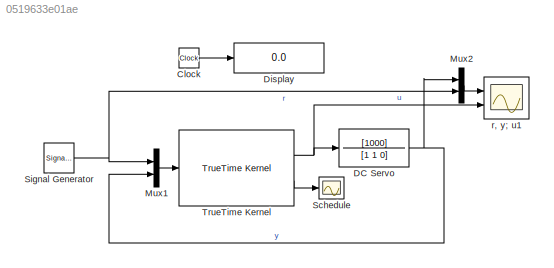
MODEL slx_0519633e01ae
KIND model
CONFIG InitFcn = clear functions
BLOCK [Clock] Clock
BLOCK [TransferFcn] DC Servo
  Denominator = [1 1 0]
  Numerator = [1000]
BLOCK [Display] Display
  Decimation = 1
  Ports = [1]
BLOCK [Mux] Mux1
  DisplayOption = bar
  Inputs = 2
  Ports = [2, 1]
BLOCK [Mux] Mux2
  DisplayOption = bar
  Inputs = 2
  Ports = [2, 1]
BLOCK [Scope] Schedule
  DataFormat = Array
  Decimation = 1
  Grid = on
  LimitDataPoints = off
  MaxDataPoints = 5000
  Ports = [1]
  SampleInput = off
  SampleTime = -1
  SaveName = ScopeData2
  SaveToWorkspace = off
  ShowLegends = off
  TickLabels = on
  TimeRange = 2
  YMax = 1.7
  YMin = 0.8
  ZoomMode = on
BLOCK [SignalGenerator] Signal Generator
  Ports = [0, 1]
  WaveForm = square
BLOCK [Reference] TrueTime Kernel  REF=truetime/TrueTime Kernel  (lib defined in slx_0362a698a4ec)
  Ports = [1, 2]
  SourceBlock = truetime/TrueTime Kernel
  UserDataPersistent = on
  args = 4
  battery = off
  clockoffsetdrift = [0 0]
  ninputsoutputs = [2 1]
  ntriggers = 0
  nwnodenbr = []
  poweroutput = off
  schedoutput = on
  sfun = servo_init_new
  trigtype = falling
BLOCK [Scope] r, y; u1
  DataFormat = StructureWithTime
  Decimation = 1
  Grid = on
  LimitDataPoints = off
  MaxDataPoints = 5000
  NumInputPorts = 2
  Ports = [2]
  SampleInput = off
  SampleTime = -1
  SaveName = y
  SaveToWorkspace = off
  ShowLegends = off
  TickLabels = OneTimeTick
  TimeRange = 1
  YMax = 1.5~4
  YMin = -1.5~-4
  ZoomMode = xonly
LINE Clock:1 -> Display:1
NET DC Servo:1 -> Mux1:2, Mux2:1
LINE Mux1:1 -> TrueTime Kernel:1
LINE Mux2:1 -> r, y; u1:1
NET Signal Generator:1 -> Mux1:1, Mux2:2
NET TrueTime Kernel:1 -> DC Servo:1, r, y; u1:2
LINE TrueTime Kernel:2 -> Schedule:1
note: NET lines group one-source signal fan-out (src -> all destinations, sorted); 1:1 wires keep LINE
